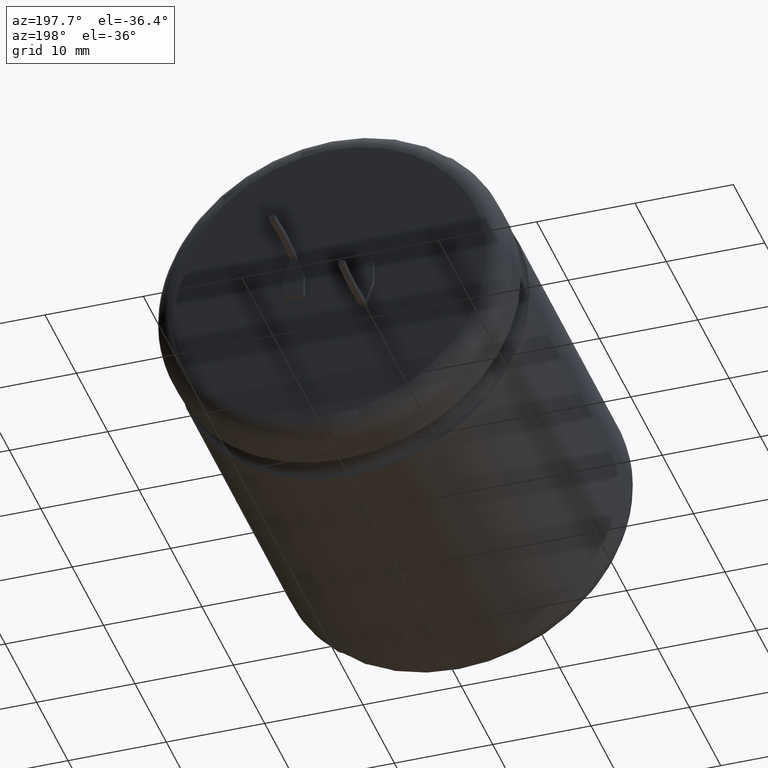
[diagram: clean part render]
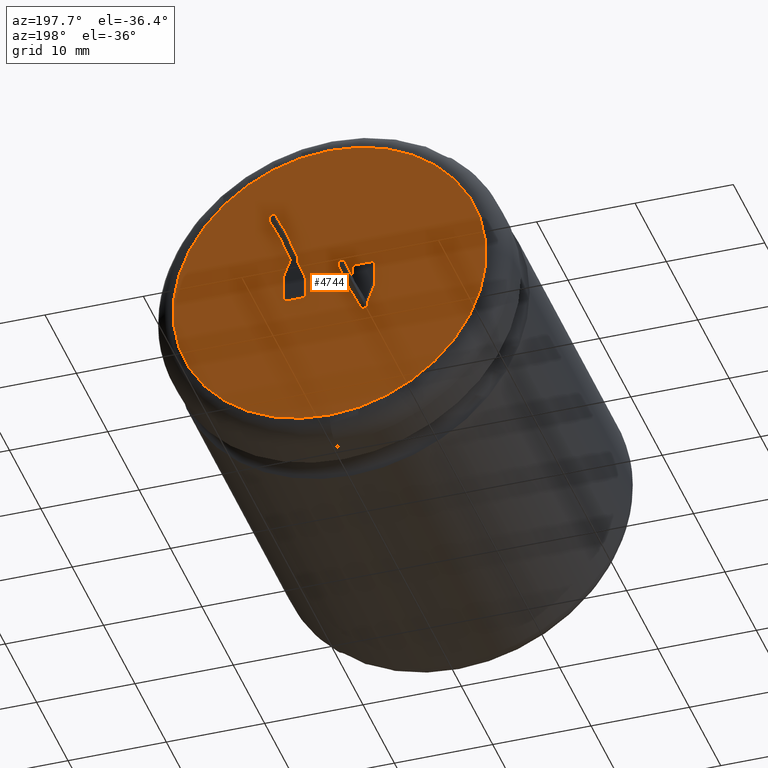
[diagram: same view with one face highlighted and labeled with its STEP entity id]
A machine part, auxiliary view. The second image highlights one B-rep face of the part: STEP entity #4744.
In plain terms, the highlighted planar face has unit normal (0, 1, 0).
Its self-contained STEP definition (entity closure, byte-faithful):
#23 = EDGE_LOOP ( 'NONE', ( #2515, #4693, #1298, #619, #1948, #1251, #2598, #1602 ) ) ;
#27 = VERTEX_POINT ( 'NONE', #569 ) ;
#44 = CARTESIAN_POINT ( 'NONE',  ( -2.485533905932738400, 41.99000000000000200, -1.199999999999995700 ) ) ;
#101 = CARTESIAN_POINT ( 'NONE',  ( 1.950421478194040200E-015, 41.99000000000000200, -15.92640000000000100 ) ) ;
#124 = CARTESIAN_POINT ( 'NONE',  ( -4.585533905932739400, 41.99000000000000200, -1.199999999999995300 ) ) ;
#126 = VERTEX_POINT ( 'NONE', #1400 ) ;
#133 = CARTESIAN_POINT ( 'NONE',  ( 0.0000000000000000000, 41.99000000000000200, 0.0000000000000000000 ) ) ;
#137 = CARTESIAN_POINT ( 'NONE',  ( 0.0000000000000000000, 41.99000000000000200, 0.0000000000000000000 ) ) ;
#172 = CARTESIAN_POINT ( 'NONE',  ( -4.585533905932739400, 41.99000000000000200, 1.200000000000004400 ) ) ;
#182 = LINE ( 'NONE', #941, #3407 ) ;
#205 = VERTEX_POINT ( 'NONE', #4436 ) ;
#233 = EDGE_CURVE ( 'NONE', #1807, #126, #1078, .T. ) ;
#311 = VERTEX_POINT ( 'NONE', #101 ) ;
#344 = LINE ( 'NONE', #1848, #2624 ) ;
#422 = VERTEX_POINT ( 'NONE', #1961 ) ;
#446 = FACE_OUTER_BOUND ( 'NONE', #3915, .T. ) ;
#451 = FACE_BOUND ( 'NONE', #23, .T. ) ;
#465 = CARTESIAN_POINT ( 'NONE',  ( 3.235533905932737500, 41.99000000000000200, 3.235533905932737500 ) ) ;
#498 = CARTESIAN_POINT ( 'NONE',  ( -3.235533905932737500, 41.99000000000000200, -3.235533905932737500 ) ) ;
#499 = CARTESIAN_POINT ( 'NONE',  ( -4.585533905932739400, 41.99000000000000200, -1.199999999999995300 ) ) ;
#502 = VERTEX_POINT ( 'NONE', #2004 ) ;
#548 = CARTESIAN_POINT ( 'NONE',  ( 2.485533905932738400, 41.99000000000000200, -4.171734828359475000E-015 ) ) ;
#569 = CARTESIAN_POINT ( 'NONE',  ( 3.835533905932737600, 41.99000000000000200, 3.835533905932737600 ) ) ;
#588 = LINE ( 'NONE', #1860, #3458 ) ;
#619 = ORIENTED_EDGE ( 'NONE', *, *, #4806, .F. ) ;
#627 = CARTESIAN_POINT ( 'NONE',  ( -4.585533905932739400, 41.99000000000000200, -1.199999999999995300 ) ) ;
#643 = CARTESIAN_POINT ( 'NONE',  ( -2.485533905932738400, 41.99000000000000200, 4.171734828359475000E-015 ) ) ;
#676 = VECTOR ( 'NONE', #1957, 1000.000000000000000 ) ;
#721 = DIRECTION ( 'NONE',  ( 0.3457323320025593700, 0.0000000000000000000, -0.9383331788912039300 ) ) ;
#726 = CARTESIAN_POINT ( 'NONE',  ( 2.485533905932738400, 41.99000000000000200, 1.199999999999995700 ) ) ;
#770 = EDGE_CURVE ( 'NONE', #27, #1807, #2712, .T. ) ;
#795 = CARTESIAN_POINT ( 'NONE',  ( -2.485533905932738800, 41.99000000000000200, 1.200000000000004000 ) ) ;
#831 = VECTOR ( 'NONE', #4577, 1000.000000000000000 ) ;
#833 = ORIENTED_EDGE ( 'NONE', *, *, #2009, .F. ) ;
#876 = VERTEX_POINT ( 'NONE', #465 ) ;
#880 = EDGE_CURVE ( 'NONE', #205, #3529, #1838, .T. ) ;
#891 = DIRECTION ( 'NONE',  ( 0.0000000000000000000, 1.000000000000000000, 0.0000000000000000000 ) ) ;
#941 = CARTESIAN_POINT ( 'NONE',  ( 3.835533905932737600, 41.99000000000000200, 3.835533905932737600 ) ) ;
#975 = VECTOR ( 'NONE', #1002, 1000.000000000000000 ) ;
#1002 = DIRECTION ( 'NONE',  ( 0.0000000000000000000, 0.0000000000000000000, -1.000000000000000000 ) ) ;
#1078 = LINE ( 'NONE', #1869, #2722 ) ;
#1096 = EDGE_CURVE ( 'NONE', #4673, #311, #1235, .T. ) ;
#1133 = PLANE ( 'NONE',  #1441 ) ;
#1153 = CIRCLE ( 'NONE', #3354, 15.92640000000000100 ) ;
#1164 = ORIENTED_EDGE ( 'NONE', *, *, #2492, .F. ) ;
#1222 = VECTOR ( 'NONE', #1244, 1000.000000000000000 ) ;
#1235 = CIRCLE ( 'NONE', #4121, 15.92640000000000100 ) ;
#1244 = DIRECTION ( 'NONE',  ( -0.0000000000000000000, -0.0000000000000000000, -1.000000000000000000 ) ) ;
#1251 = ORIENTED_EDGE ( 'NONE', *, *, #4571, .F. ) ;
#1298 = ORIENTED_EDGE ( 'NONE', *, *, #880, .F. ) ;
#1363 = VERTEX_POINT ( 'NONE', #172 ) ;
#1400 = CARTESIAN_POINT ( 'NONE',  ( 4.585533905932739400, 41.99000000000000200, 1.199999999999995300 ) ) ;
#1422 = DIRECTION ( 'NONE',  ( 0.0000000000000000000, 0.0000000000000000000, 1.000000000000000000 ) ) ;
#1441 = AXIS2_PLACEMENT_3D ( 'NONE', #1582, #2698, #1911 ) ;
#1461 = CARTESIAN_POINT ( 'NONE',  ( 0.0000000000000000000, 41.99000000000000200, 15.92640000000000100 ) ) ;
#1507 = VECTOR ( 'NONE', #2551, 1000.000000000000100 ) ;
#1515 = CARTESIAN_POINT ( 'NONE',  ( -3.835533905932737600, 41.99000000000000200, -3.835533905932737600 ) ) ;
#1568 = VECTOR ( 'NONE', #2348, 1000.000000000000000 ) ;
#1569 = EDGE_CURVE ( 'NONE', #3594, #27, #182, .T. ) ;
#1582 = CARTESIAN_POINT ( 'NONE',  ( 0.0000000000000000000, 41.99000000000000200, 0.0000000000000000000 ) ) ;
#1602 = ORIENTED_EDGE ( 'NONE', *, *, #2956, .F. ) ;
#1607 = VECTOR ( 'NONE', #4424, 1000.000000000000100 ) ;
#1711 = VECTOR ( 'NONE', #1829, 1000.000000000000000 ) ;
#1733 = LINE ( 'NONE', #548, #2500 ) ;
#1772 = ORIENTED_EDGE ( 'NONE', *, *, #233, .F. ) ;
#1775 = EDGE_CURVE ( 'NONE', #3034, #2878, #3647, .T. ) ;
#1807 = VERTEX_POINT ( 'NONE', #2015 ) ;
#1829 = DIRECTION ( 'NONE',  ( -7.228014483236692600E-016, 0.0000000000000000000, -1.000000000000000000 ) ) ;
#1838 = LINE ( 'NONE', #3520, #831 ) ;
#1848 = CARTESIAN_POINT ( 'NONE',  ( 3.235533905932737500, 41.99000000000000200, 3.835533905932737600 ) ) ;
#1860 = CARTESIAN_POINT ( 'NONE',  ( 4.585533905932739400, 41.99000000000000200, 1.199999999999995300 ) ) ;
#1869 = CARTESIAN_POINT ( 'NONE',  ( 4.585533905932739400, 41.99000000000000200, 1.199999999999995300 ) ) ;
#1878 = ORIENTED_EDGE ( 'NONE', *, *, #770, .F. ) ;
#1911 = DIRECTION ( 'NONE',  ( 0.0000000000000000000, -0.0000000000000000000, 1.000000000000000000 ) ) ;
#1948 = ORIENTED_EDGE ( 'NONE', *, *, #1775, .F. ) ;
#1957 = DIRECTION ( 'NONE',  ( -1.000000000000000000, -0.0000000000000000000, -0.0000000000000000000 ) ) ;
#1961 = CARTESIAN_POINT ( 'NONE',  ( 4.585533905932739400, 41.99000000000000200, -1.200000000000004400 ) ) ;
#1980 = VECTOR ( 'NONE', #1422, 1000.000000000000000 ) ;
#2004 = CARTESIAN_POINT ( 'NONE',  ( 2.485533905932738800, 41.99000000000000200, -1.200000000000004000 ) ) ;
#2009 = EDGE_CURVE ( 'NONE', #126, #422, #588, .T. ) ;
#2015 = CARTESIAN_POINT ( 'NONE',  ( 3.835533905932737100, 41.99000000000000200, 3.235533905932737500 ) ) ;
#2047 = DIRECTION ( 'NONE',  ( 0.0000000000000000000, 0.0000000000000000000, 1.000000000000000000 ) ) ;
#2161 = VECTOR ( 'NONE', #2185, 1000.000000000000000 ) ;
#2185 = DIRECTION ( 'NONE',  ( -1.000000000000000000, 0.0000000000000000000, -3.923779290899926400E-015 ) ) ;
#2274 = CARTESIAN_POINT ( 'NONE',  ( -3.235533905932737500, 41.99000000000000200, -3.835533905932737600 ) ) ;
#2348 = DIRECTION ( 'NONE',  ( -0.3457323320025593700, -0.0000000000000000000, 0.9383331788912039300 ) ) ;
#2357 = DIRECTION ( 'NONE',  ( 0.0000000000000000000, 1.000000000000000000, 0.0000000000000000000 ) ) ;
#2492 = EDGE_CURVE ( 'NONE', #422, #502, #3265, .T. ) ;
#2500 = VECTOR ( 'NONE', #3508, 1000.000000000000000 ) ;
#2515 = ORIENTED_EDGE ( 'NONE', *, *, #2645, .F. ) ;
#2551 = DIRECTION ( 'NONE',  ( 0.3457323320025580400, -0.0000000000000000000, 0.9383331788912043800 ) ) ;
#2598 = ORIENTED_EDGE ( 'NONE', *, *, #3586, .F. ) ;
#2601 = ORIENTED_EDGE ( 'NONE', *, *, #2732, .T. ) ;
#2624 = VECTOR ( 'NONE', #2955, 1000.000000000000000 ) ;
#2645 = EDGE_CURVE ( 'NONE', #4029, #1363, #4017, .T. ) ;
#2698 = DIRECTION ( 'NONE',  ( 0.0000000000000000000, 1.000000000000000000, 0.0000000000000000000 ) ) ;
#2712 = LINE ( 'NONE', #4838, #1711 ) ;
#2722 = VECTOR ( 'NONE', #721, 1000.000000000000000 ) ;
#2725 = CARTESIAN_POINT ( 'NONE',  ( -2.485533905932738800, 41.99000000000000200, 1.200000000000004000 ) ) ;
#2729 = LINE ( 'NONE', #2725, #3564 ) ;
#2732 = EDGE_CURVE ( 'NONE', #311, #4673, #1153, .T. ) ;
#2745 = CARTESIAN_POINT ( 'NONE',  ( -3.835533905932737100, 41.99000000000000200, -3.235533905932737500 ) ) ;
#2797 = LINE ( 'NONE', #643, #975 ) ;
#2878 = VERTEX_POINT ( 'NONE', #2274 ) ;
#2897 = FACE_BOUND ( 'NONE', #3776, .T. ) ;
#2911 = CARTESIAN_POINT ( 'NONE',  ( -3.235533905932737500, 41.99000000000000200, -3.235533905932737500 ) ) ;
#2913 = LINE ( 'NONE', #124, #1568 ) ;
#2955 = DIRECTION ( 'NONE',  ( 0.0000000000000000000, -0.0000000000000000000, 1.000000000000000000 ) ) ;
#2956 = EDGE_CURVE ( 'NONE', #1363, #3178, #2729, .T. ) ;
#2986 = CARTESIAN_POINT ( 'NONE',  ( 3.235533905932737500, 41.99000000000000200, 3.835533905932737600 ) ) ;
#3004 = ORIENTED_EDGE ( 'NONE', *, *, #3125, .F. ) ;
#3034 = VERTEX_POINT ( 'NONE', #498 ) ;
#3125 = EDGE_CURVE ( 'NONE', #876, #3594, #344, .T. ) ;
#3178 = VERTEX_POINT ( 'NONE', #795 ) ;
#3244 = LINE ( 'NONE', #1515, #676 ) ;
#3265 = LINE ( 'NONE', #3724, #2161 ) ;
#3354 = AXIS2_PLACEMENT_3D ( 'NONE', #133, #891, #2047 ) ;
#3382 = LINE ( 'NONE', #2911, #1607 ) ;
#3407 = VECTOR ( 'NONE', #4756, 1000.000000000000000 ) ;
#3458 = VECTOR ( 'NONE', #4850, 1000.000000000000000 ) ;
#3508 = DIRECTION ( 'NONE',  ( 0.0000000000000000000, 0.0000000000000000000, 1.000000000000000000 ) ) ;
#3520 = CARTESIAN_POINT ( 'NONE',  ( -3.835533905932737600, 41.99000000000000200, -3.835533905932737600 ) ) ;
#3529 = VERTEX_POINT ( 'NONE', #2745 ) ;
#3560 = ORIENTED_EDGE ( 'NONE', *, *, #3798, .F. ) ;
#3564 = VECTOR ( 'NONE', #4565, 1000.000000000000000 ) ;
#3566 = LINE ( 'NONE', #4821, #1507 ) ;
#3586 = EDGE_CURVE ( 'NONE', #3178, #4667, #2797, .T. ) ;
#3594 = VERTEX_POINT ( 'NONE', #2986 ) ;
#3647 = LINE ( 'NONE', #4579, #1222 ) ;
#3685 = EDGE_CURVE ( 'NONE', #3529, #4029, #2913, .T. ) ;
#3724 = CARTESIAN_POINT ( 'NONE',  ( 2.485533905932738800, 41.99000000000000200, -1.200000000000004000 ) ) ;
#3776 = EDGE_LOOP ( 'NONE', ( #833, #1772, #1878, #3882, #3004, #3560, #3940, #1164 ) ) ;
#3798 = EDGE_CURVE ( 'NONE', #4534, #876, #3566, .T. ) ;
#3882 = ORIENTED_EDGE ( 'NONE', *, *, #1569, .F. ) ;
#3915 = EDGE_LOOP ( 'NONE', ( #4494, #2601 ) ) ;
#3940 = ORIENTED_EDGE ( 'NONE', *, *, #4010, .F. ) ;
#4010 = EDGE_CURVE ( 'NONE', #502, #4534, #1733, .T. ) ;
#4017 = LINE ( 'NONE', #627, #1980 ) ;
#4029 = VERTEX_POINT ( 'NONE', #499 ) ;
#4121 = AXIS2_PLACEMENT_3D ( 'NONE', #137, #2357, #4246 ) ;
#4246 = DIRECTION ( 'NONE',  ( 0.0000000000000000000, 0.0000000000000000000, 1.000000000000000000 ) ) ;
#4424 = DIRECTION ( 'NONE',  ( -0.3457323320025580400, -0.0000000000000000000, -0.9383331788912043800 ) ) ;
#4436 = CARTESIAN_POINT ( 'NONE',  ( -3.835533905932737600, 41.99000000000000200, -3.835533905932737600 ) ) ;
#4494 = ORIENTED_EDGE ( 'NONE', *, *, #1096, .T. ) ;
#4534 = VERTEX_POINT ( 'NONE', #726 ) ;
#4565 = DIRECTION ( 'NONE',  ( 1.000000000000000000, -0.0000000000000000000, 3.923779290899926400E-015 ) ) ;
#4571 = EDGE_CURVE ( 'NONE', #4667, #3034, #3382, .T. ) ;
#4577 = DIRECTION ( 'NONE',  ( 7.228014483236692600E-016, 0.0000000000000000000, 1.000000000000000000 ) ) ;
#4579 = CARTESIAN_POINT ( 'NONE',  ( -3.235533905932737500, 41.99000000000000200, -3.835533905932737600 ) ) ;
#4667 = VERTEX_POINT ( 'NONE', #44 ) ;
#4673 = VERTEX_POINT ( 'NONE', #1461 ) ;
#4693 = ORIENTED_EDGE ( 'NONE', *, *, #3685, .F. ) ;
#4744 = ADVANCED_FACE ( 'NONE', ( #451, #446, #2897 ), #1133, .T. ) ;
#4756 = DIRECTION ( 'NONE',  ( 1.000000000000000000, -0.0000000000000000000, 0.0000000000000000000 ) ) ;
#4806 = EDGE_CURVE ( 'NONE', #2878, #205, #3244, .T. ) ;
#4821 = CARTESIAN_POINT ( 'NONE',  ( 3.235533905932737500, 41.99000000000000200, 3.235533905932737500 ) ) ;
#4838 = CARTESIAN_POINT ( 'NONE',  ( 3.835533905932737600, 41.99000000000000200, 3.835533905932737600 ) ) ;
#4850 = DIRECTION ( 'NONE',  ( 0.0000000000000000000, 0.0000000000000000000, -1.000000000000000000 ) ) ;